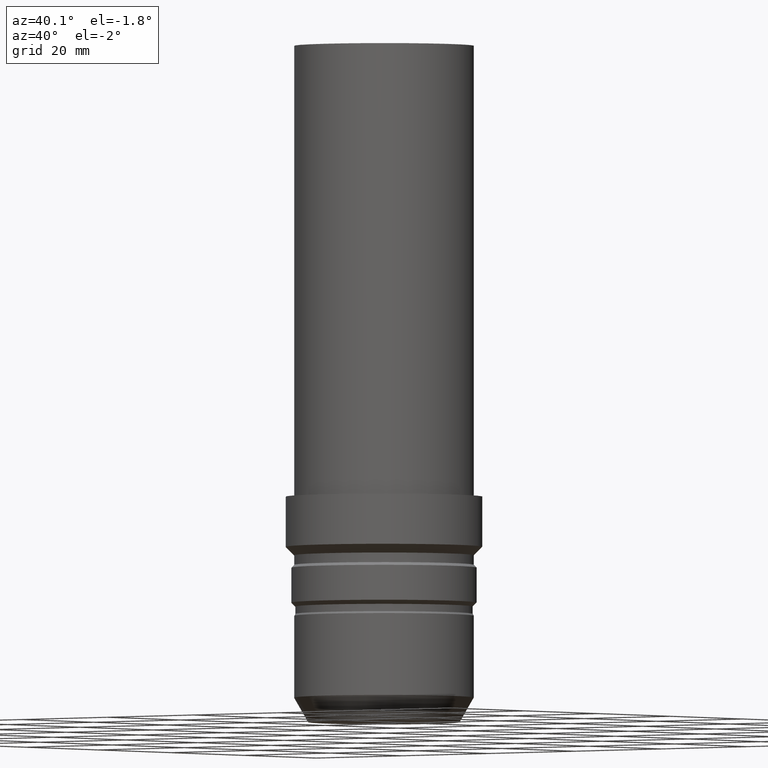
[diagram: clean part render]
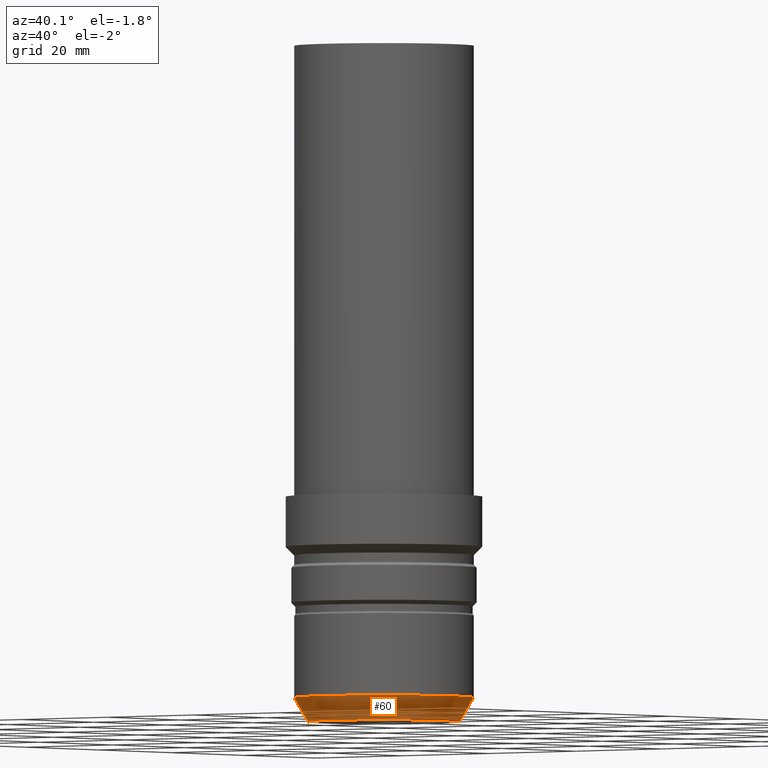
[diagram: same view with one face highlighted and labeled with its STEP entity id]
A machine part, auxiliary view. The second image highlights one B-rep face of the part: STEP entity #60.
In plain terms, the highlighted conical surface has half-angle 30 deg.
Its self-contained STEP definition (entity closure, byte-faithful):
#60=ADVANCED_FACE('Unnamed[1]',(#151,#152),#153,.T.);
#80=EDGE_CURVE('Unnamed[1]',#182,#182,#183,.T.);
#118=EDGE_CURVE('Unnamed[1]',#242,#242,#243,.T.);
#151=FACE_BOUND('',#271,.T.);
#152=FACE_BOUND('',#272,.T.);
#153=CONICAL_SURFACE('',#273,14.75,0.5235987755983);
#182=VERTEX_POINT('',#309);
#183=CIRCLE('',#310,16.0);
#242=VERTEX_POINT('',#384);
#243=CIRCLE('',#385,13.5000000000001);
#271=EDGE_LOOP('',(#405));
#272=EDGE_LOOP('',(#406));
#273=AXIS2_PLACEMENT_3D('',#407,#408,#409);
#309=CARTESIAN_POINT('',(-2.65143809681213E-016,16.0,4.33012701892198));
#310=AXIS2_PLACEMENT_3D('',#438,#439,#440);
#384=CARTESIAN_POINT('',(3.15544362088405E-030,13.5000000000001,-2.8421709430404E-014));
#385=AXIS2_PLACEMENT_3D('',#506,#507,#508);
#405=ORIENTED_EDGE('',*,*,#118,.F.);
#406=ORIENTED_EDGE('',*,*,#80,.T.);
#407=CARTESIAN_POINT('',(-1.32571904840608E-016,4.02239179593993E-015,2.16506350946101));
#408=DIRECTION('',(-6.12323399573677E-017,1.85786318893773E-015,1.0));
#409=DIRECTION('',(1.08934157648545E-031,1.0,-1.85786318893773E-015));
#438=CARTESIAN_POINT('',(-2.65143809681215E-016,8.04478359187988E-015,4.33012701892201));
#439=DIRECTION('',(6.12323399573677E-017,-1.85786318893773E-015,-1.0));
#440=DIRECTION('',(1.08934157648545E-031,1.0,-1.85786318893773E-015));
#506=CARTESIAN_POINT('',(0.0,0.0,0.0));
#507=DIRECTION('',(6.12323399573677E-017,-1.85786318893773E-015,-1.0));
#508=DIRECTION('',(1.08934157648545E-031,1.0,-1.85786318893773E-015));